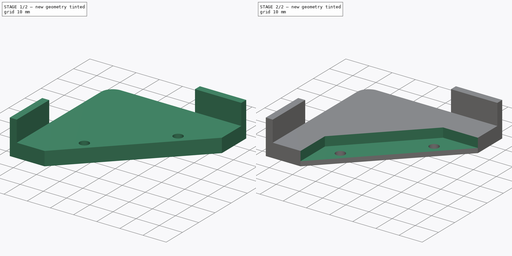
[diagram: build sequence overview — one tinted view per stage of 2, left to right]
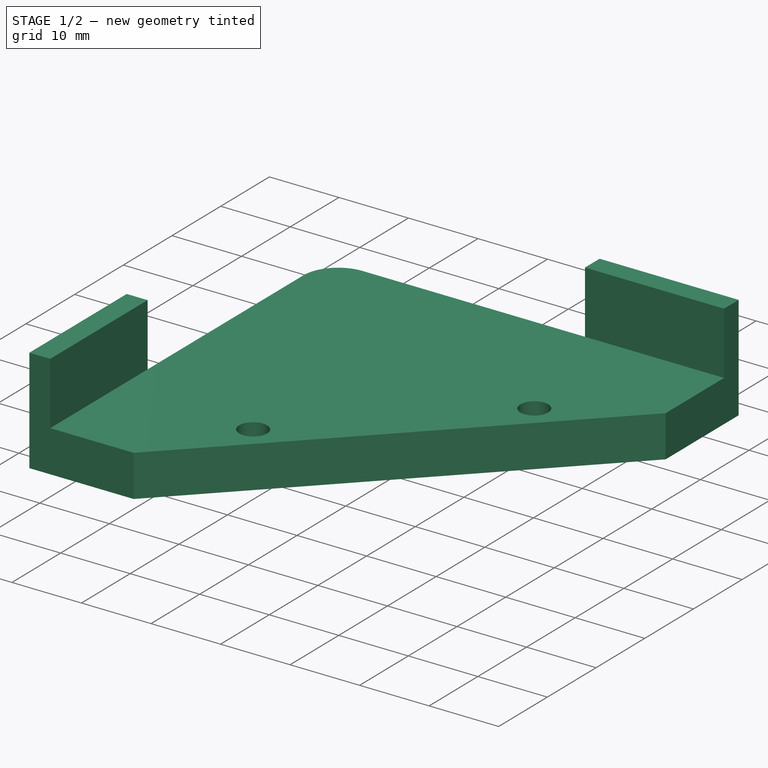
[diagram: stage 1 of 2 — iso view after this stage's code; geometry added in this stage tinted green]
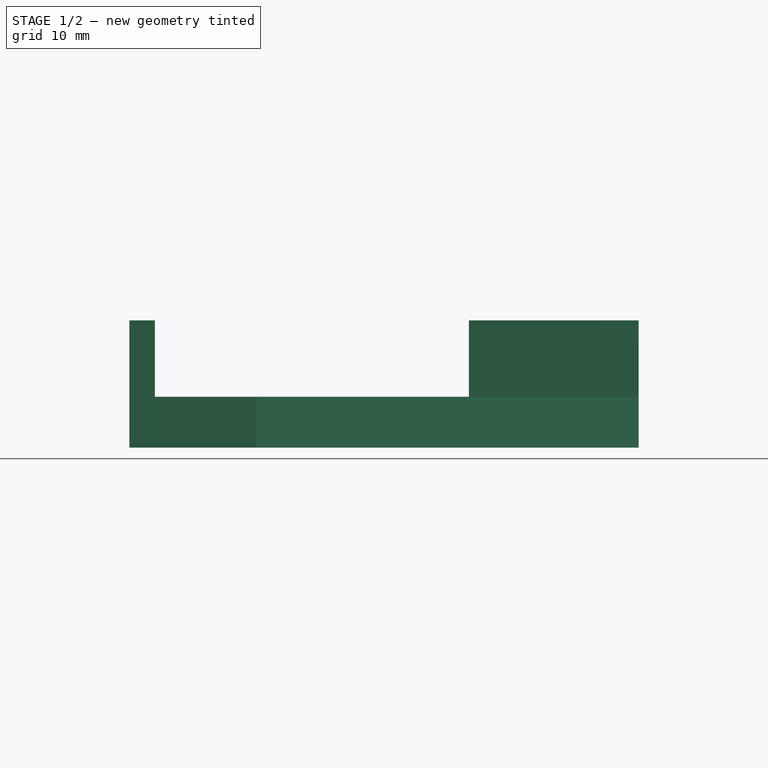
[diagram: stage 1 of 2 — front view after this stage's code; geometry added in this stage tinted green]
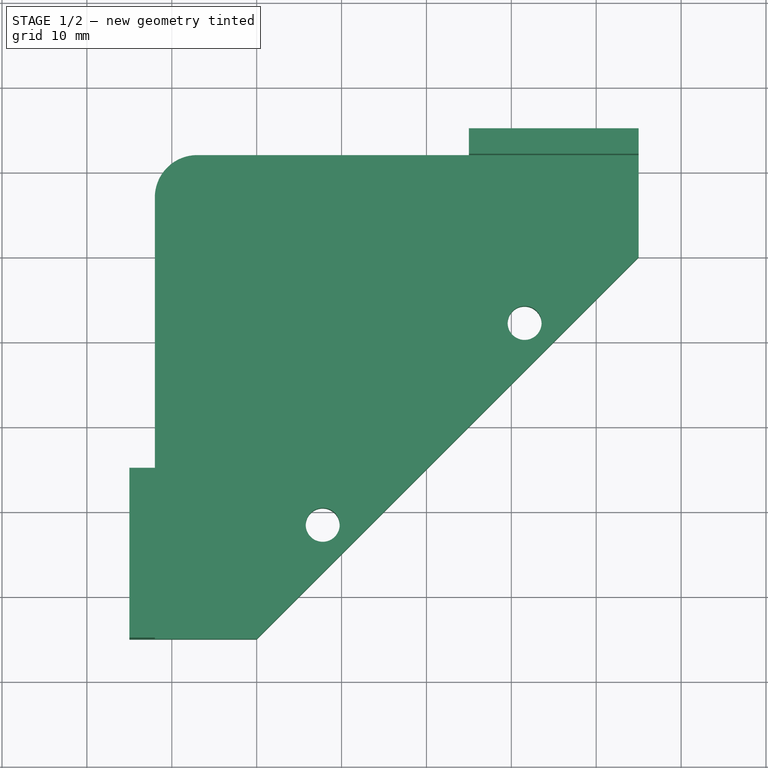
[diagram: stage 1 of 2 — top view after this stage's code; geometry added in this stage tinted green]
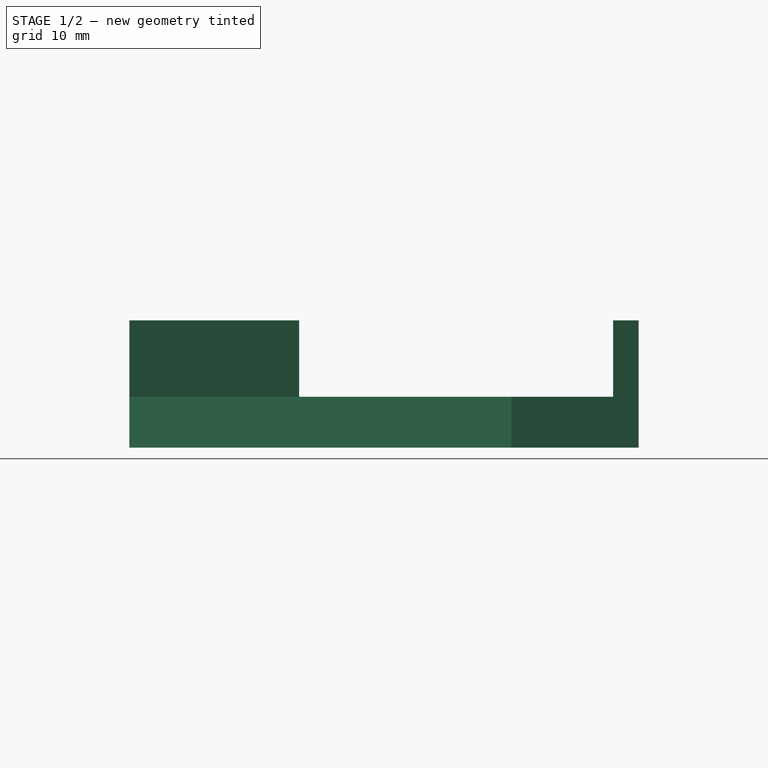
[diagram: stage 1 of 2 — right view after this stage's code; geometry added in this stage tinted green]
FCSTD DOCUMENT  (FreeCAD 0.20R27319 (Git))
Label: Corner  Guides
License: All rights reserved
LicenseURL: http://en.wikipedia.org/wiki/All_rights_reserved
objects: Sketcher::SketchObject×3, PartDesign::Pad×2, Spreadsheet::Sheet×1, PartDesign::Plane×1, PartDesign::Pocket×1, PartDesign::Body×1
note: 11 computed .brp shape members not serialized (recipe doc carries the construction recipe); baked Part::Feature solids carry a one-line shape summary decoded from their .brp

FEATURE [Sketcher::SketchObject] Sketch
  FullyConstrained = true
  MapMode = 5
  Support = -> [XY_Plane]
  expr: Constraints[41] = Spreadsheet.radius
  sketch-geometry (15):
    g0: LineSegment StartX=-7 StartY=12 StartZ=0 EndX=25 EndY=12 EndZ=0
    g1: LineSegment StartX=-12 StartY=7 StartZ=0 EndX=-12 EndY=-25 EndZ=0
    g2: LineSegment StartX=25 StartY=12 StartZ=0 EndX=25 EndY=15 EndZ=0
    g3: LineSegment StartX=25 StartY=15 StartZ=0 EndX=45 EndY=15 EndZ=0
    g4: LineSegment StartX=-12 StartY=-25 StartZ=0 EndX=-15 EndY=-25 EndZ=0
    g5: LineSegment StartX=-15 StartY=-25 StartZ=0 EndX=-15 EndY=-45 EndZ=0
    g6: LineSegment StartX=45 StartY=15 StartZ=0 EndX=45 EndY=0 EndZ=0
    g7: LineSegment StartX=-15 StartY=-45 StartZ=0 EndX=0 EndY=-45 EndZ=0
    g8: LineSegment StartX=0 StartY=-45 StartZ=0 EndX=45 EndY=0 EndZ=0
    g9: LineSegment StartX=42.1716 StartY=2.82843 StartZ=0 EndX=-2.82843 EndY=-42.1716 EndZ=0
    g10: Circle CenterX=31.565 CenterY=-7.77817 CenterZ=0 NormalX=0 NormalY=0 NormalZ=1 AngleXU=0 Radius=2
    g11: Circle CenterX=7.77817 CenterY=-31.565 CenterZ=0 NormalX=0 NormalY=0 NormalZ=1 AngleXU=0 Radius=2
    g12: LineSegment StartX=42.1716 StartY=2.82843 StartZ=0 EndX=45 EndY=0 EndZ=0
    g13: LineSegment StartX=-2.82843 StartY=-42.1716 StartZ=0 EndX=0 EndY=-45 EndZ=0
    g14: ArcOfCircle CenterX=-7 CenterY=7 CenterZ=0 NormalX=0 NormalY=0 NormalZ=1 AngleXU=0 Radius=5 StartAngle=1.5708 EndAngle=3.14159
  constraints (43):
    c: Horizontal(g0)
    c: Vertical(g1)
    c: Equal(g0,g1)
    c: Coincident(g2,g0)
    c: Coincident(g3,g2)
    c: Horizontal(g3)
    c: Vertical(g2)
    c: Coincident(g4,g1)
    c: Horizontal(g4)
    c: Coincident(g5,g4)
    c: Vertical(g5)
    c: Equal(g4,g2)
    c: Equal(g3,g5)
    c: Coincident(g6,g3)
    c: Vertical(g6)
    c: Coincident(g7,g5)
    c: Horizontal(g7)
    c: Equal(g6,g7)
    c: DistanceY(g2,g2) = 3
    c: DistanceY(g6,g6) = 15
    c: Coincident(g8,g7)
    c: Coincident(g8,g6)
    c: Parallel(g9,g8)
    c: PointOnObject(g10,g9)
    c: PointOnObject(g11,g9)
    c: Equal(g11,g10)
    c: Radius(g10) = 2
    c: Coincident(g12,g9)
    c: Coincident(g12,g6)
    c: Coincident(g13,g9)
    c: Coincident(g13,g7)
    c: Perpendicular(g12,g9)
    c: Perpendicular(g9,g13)
    c: Distance(g12) = 4
    c: Distance(g10,g9) = 15
    c: Distance(g9,g11) = 15
    c: Distance(g5) = 20
    c: PointOnObject(g7,g-2)
    c: PointOnObject(g6,g-1)
    c: Tangent(g14,g0) = 1.5708
    c: Tangent(g14,g1) = -1.5708
    c: Radius(g14) = 5
    c: DistanceY(g5,g-1) = 45
FEATURE [PartDesign::Pad] Pad
  Direction = (0,0,1)
  Length = 6
  Length2 = 10
  Profile = -> Sketch
  ReferenceAxis = -> Sketch [N_Axis]
  Type = 0
FEATURE [Sketcher::SketchObject] Sketch001
  ExternalGeometry = -> [Sketch]
  FullyConstrained = true
  MapMode = 5
  Support = -> [XY_Plane]
  sketch-geometry (8):
    g0: LineSegment StartX=-15 StartY=-45 StartZ=0 EndX=-12 EndY=-45 EndZ=0
    g1: LineSegment StartX=-12 StartY=-45 StartZ=0 EndX=-12 EndY=-25 EndZ=0
    g2: LineSegment StartX=-12 StartY=-25 StartZ=0 EndX=-15 EndY=-25 EndZ=0
    g3: LineSegment StartX=-15 StartY=-25 StartZ=0 EndX=-15 EndY=-45 EndZ=0
    g4: LineSegment StartX=25 StartY=12 StartZ=0 EndX=45 EndY=12 EndZ=0
    g5: LineSegment StartX=45 StartY=12 StartZ=0 EndX=45 EndY=15 EndZ=0
    g6: LineSegment StartX=45 StartY=15 StartZ=0 EndX=25 EndY=15 EndZ=0
    g7: LineSegment StartX=25 StartY=15 StartZ=0 EndX=25 EndY=12 EndZ=0
  constraints (20):
    c: Coincident(g0,g1)
    c: Coincident(g1,g2)
    c: Coincident(g2,g3)
    c: Coincident(g3,g0)
    c: Horizontal(g0)
    c: Horizontal(g2)
    c: Vertical(g1)
    c: Vertical(g3)
    c: Coincident(g0,g-4)
    c: Coincident(g1,g-3)
    c: Coincident(g4,g5)
    c: Coincident(g5,g6)
    c: Coincident(g6,g7)
    c: Coincident(g7,g4)
    c: Horizontal(g4)
    c: Horizontal(g6)
    c: Vertical(g5)
    c: Vertical(g7)
    c: Coincident(g4,g-6)
    c: Coincident(g5,g-5)
FEATURE [PartDesign::Pad] Pad001
  BaseFeature = -> Pad
  Direction = (0,0,1)
  Length = 15
  Length2 = 10
  Profile = -> Sketch001
  ReferenceAxis = -> Sketch001 [N_Axis]
  Type = 0
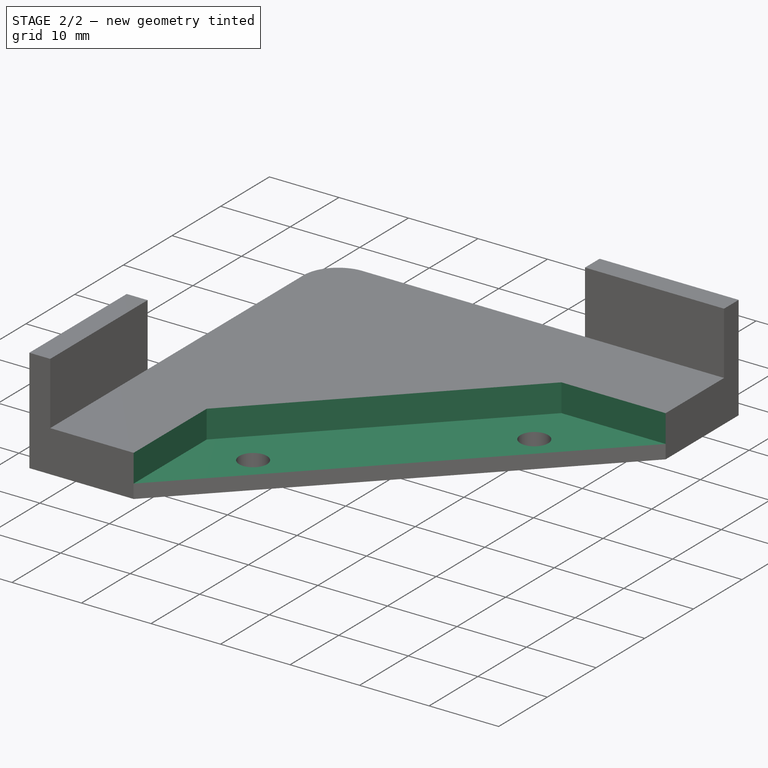
[diagram: stage 2 of 2 — iso view after this stage's code; geometry added in this stage tinted green]
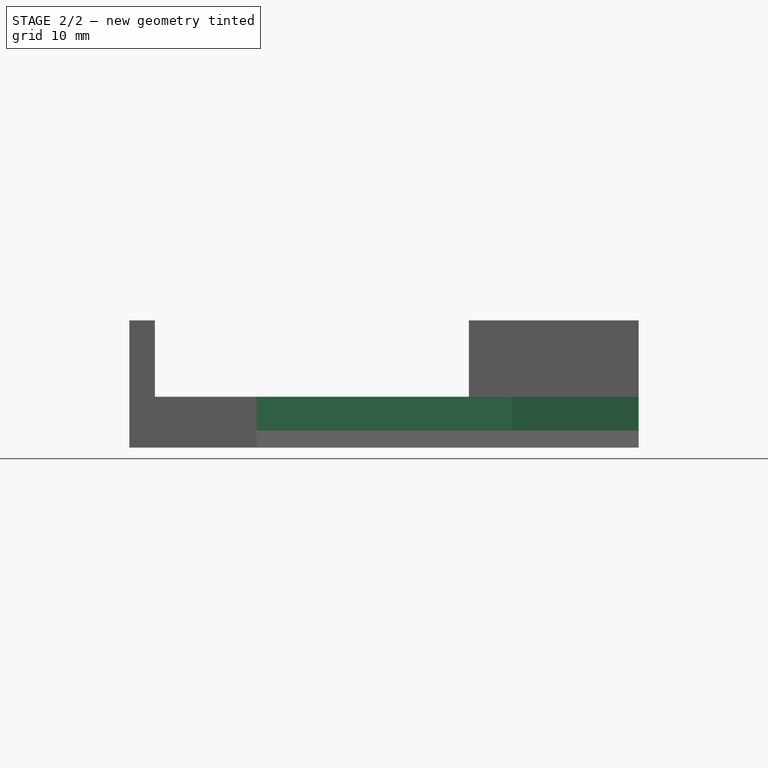
[diagram: stage 2 of 2 — front view after this stage's code; geometry added in this stage tinted green]
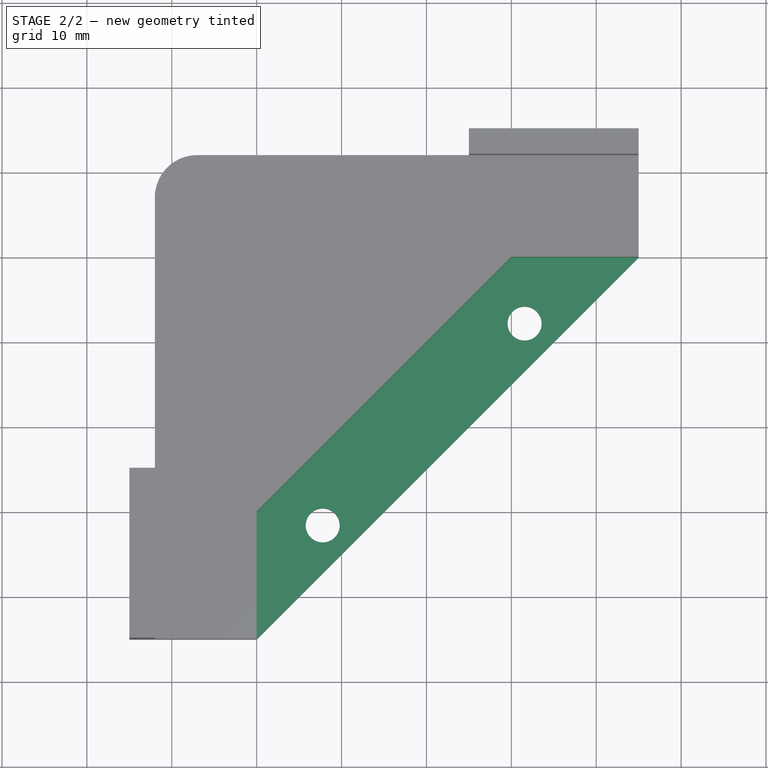
[diagram: stage 2 of 2 — top view after this stage's code; geometry added in this stage tinted green]
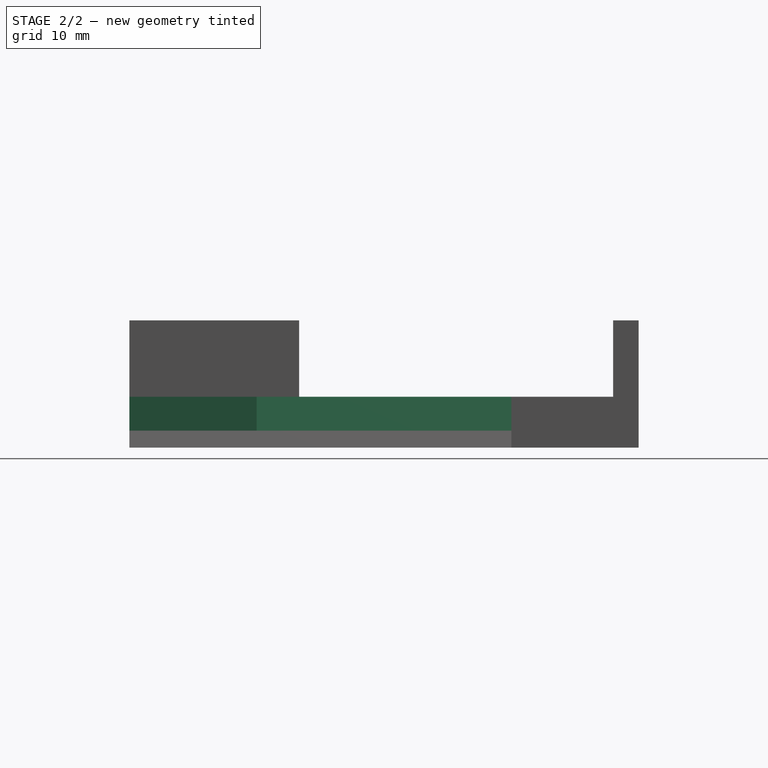
[diagram: stage 2 of 2 — right view after this stage's code; geometry added in this stage tinted green]
FEATURE [Spreadsheet::Sheet] Spreadsheet
  cells = A2=Radius; B2(radius)=5
FEATURE [PartDesign::Plane] DatumPlane
  Length = 84
  MapMode = 5
  Placement = pos=(0,0,6) rot=(0,0,1;0rad)
  ResizeMode = 0
  Support = -> [Pad001]
  Width = 84
FEATURE [Sketcher::SketchObject] Sketch002
  ExternalGeometry = -> [Sketch]
  FullyConstrained = true
  MapMode = 5
  Placement = pos=(0,0,6) rot=(0,0,1;0rad)
  Support = -> [DatumPlane]
  sketch-geometry (4):
    g0: LineSegment StartX=45 StartY=0 StartZ=0 EndX=30 EndY=0 EndZ=0
    g1: LineSegment StartX=30 StartY=0 StartZ=0 EndX=0 EndY=-30 EndZ=0
    g2: LineSegment StartX=0 StartY=-30 StartZ=0 EndX=0 EndY=-45 EndZ=0
    g3: LineSegment StartX=0 StartY=-45 StartZ=0 EndX=45 EndY=0 EndZ=0
  constraints (10):
    c: PointOnObject(g0,g-1)
    c: Coincident(g0,g1)
    c: PointOnObject(g1,g-2)
    c: Coincident(g1,g2)
    c: Coincident(g2,g3)
    c: Coincident(g3,g0)
    c: Equal(g2,g0)
    c: Coincident(g0,g-3)
    c: Coincident(g2,g-4)
    c: DistanceX(g0,g0) = 15
FEATURE [PartDesign::Pocket] Pocket
  BaseFeature = -> Pad001
  Direction = (0,0,-1)
  Length = 4
  Length2 = 5
  Profile = -> Sketch002
  ReferenceAxis = -> Sketch002 [N_Axis]
  Type = 0
FEATURE [PartDesign::Body] Body
  Group = -> [Sketch,Pad,Sketch001,Pad001,DatumPlane,Sketch002,Pocket]
  Origin = -> Origin
  Tip = -> Pocket
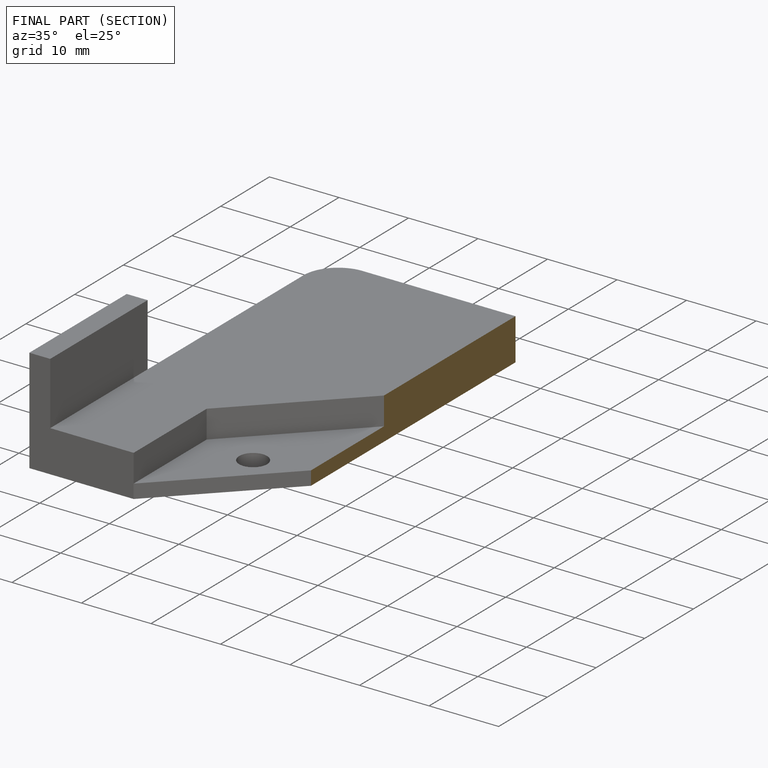
[diagram: finished part — half-section view (interior)]
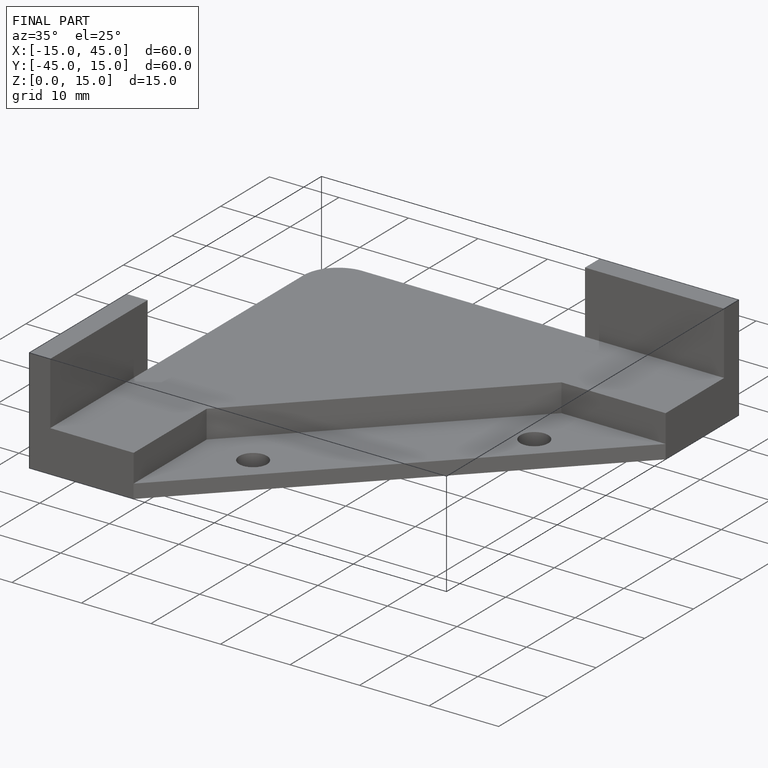
[diagram: finished part — iso view with bounding-box wireframe]
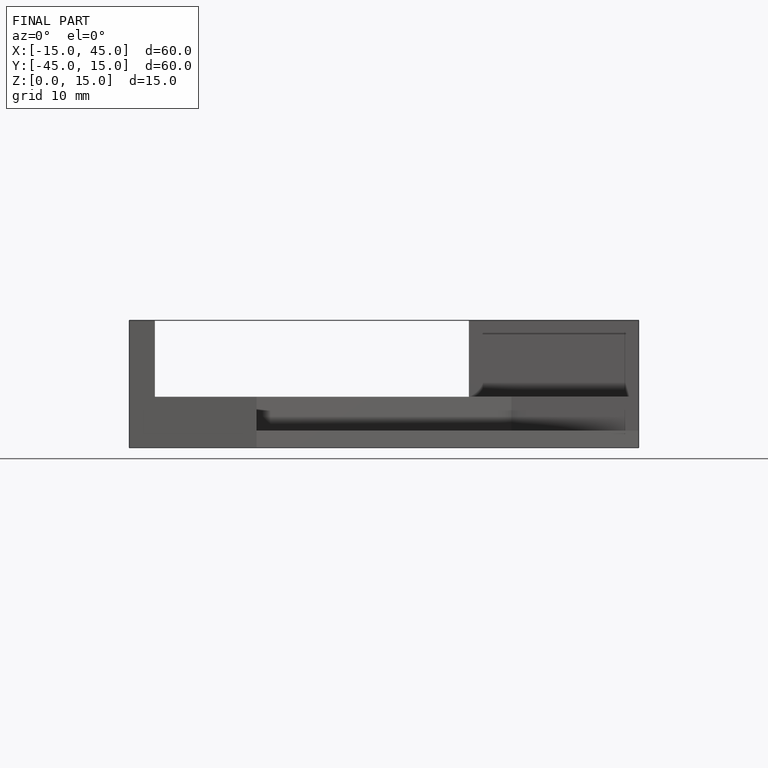
[diagram: finished part — front view with bounding-box wireframe]
